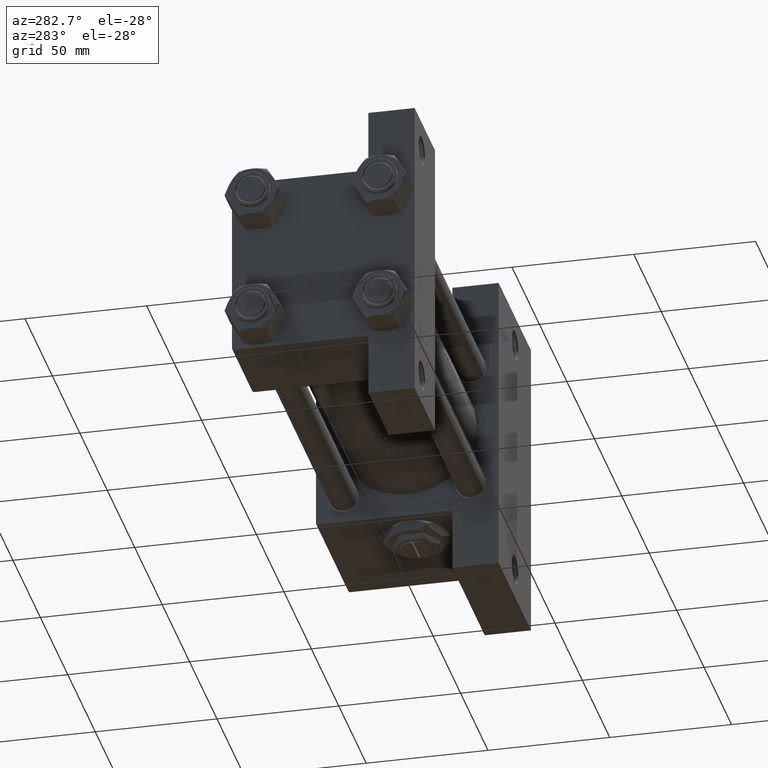
[diagram: clean part render]
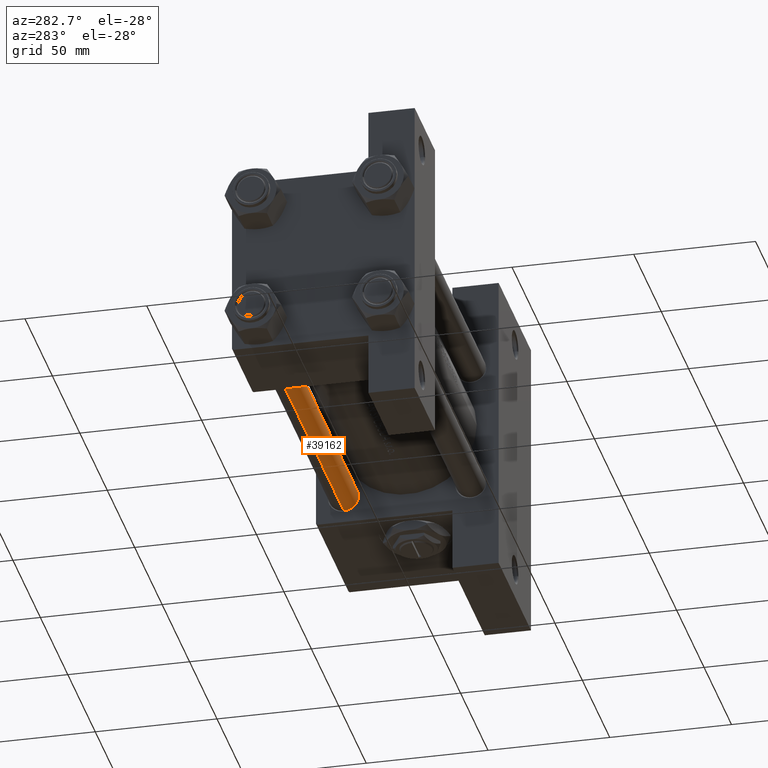
[diagram: same view with one face highlighted and labeled with its STEP entity id]
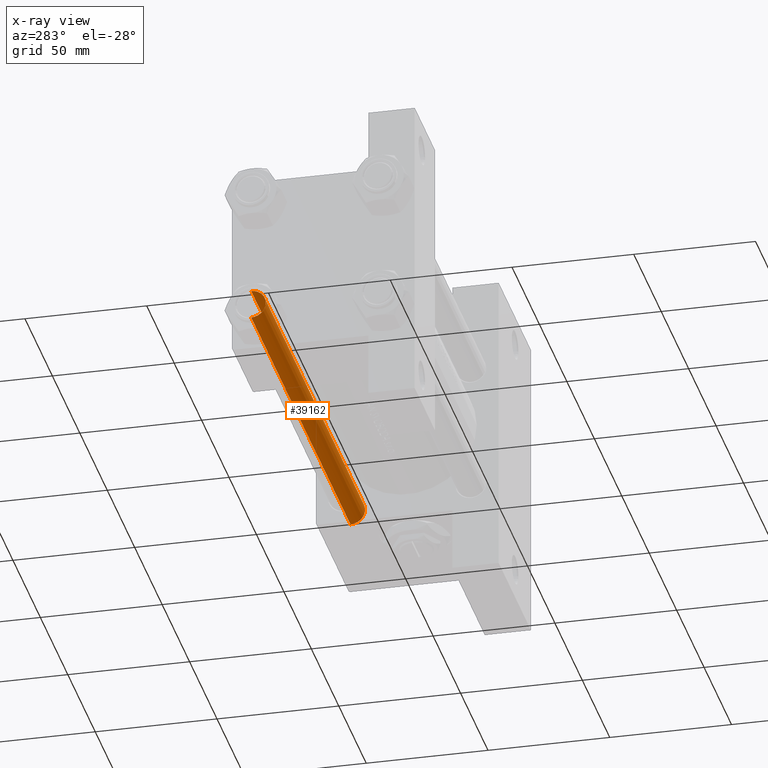
[diagram: x-ray of the same camera — body ghosted, the highlighted face saturated]
A machine part, auxiliary view. The second image highlights one B-rep face of the part: STEP entity #39162.
The next image is the same camera in x-ray: the body ghosted, the highlighted face saturated — about 0% of this face is hidden behind the body in this view.
In plain terms, the highlighted cylindrical surface (edge-blend (fillet) strip) has radius 6 mm, axis along (1, -0, -0).
Its self-contained STEP definition (entity closure, byte-faithful):
#453 = LINE ( 'NONE', #8876, #14073 ) ;
#2646 = CIRCLE ( 'NONE', #23282, 6.000000000000000888 ) ;
#3080 = CARTESIAN_POINT ( 'NONE',  ( 6.000000000000000888, 7.347880794884120722E-16, 181.5000000000000000 ) ) ;
#3381 = EDGE_CURVE ( 'NONE', #28460, #16814, #453, .T. ) ;
#3505 = VECTOR ( 'NONE', #26025, 1000.000000000000000 ) ;
#5474 = DIRECTION ( 'NONE',  ( -1.000000000000000000, 0.000000000000000000, 0.000000000000000000 ) ) ;
#6356 = CARTESIAN_POINT ( 'NONE',  ( -6.000000000000000888, 0.000000000000000000, 182.0000000000000000 ) ) ;
#6581 = ORIENTED_EDGE ( 'NONE', *, *, #3381, .F. ) ;
#8783 = CARTESIAN_POINT ( 'NONE',  ( -6.000000000000000888, 0.000000000000000000, 0.5000000000000281997 ) ) ;
#8876 = CARTESIAN_POINT ( 'NONE',  ( 6.000000000000000888, 7.347880794884120722E-16, 182.0000000000000000 ) ) ;
#12048 = CARTESIAN_POINT ( 'NONE',  ( -6.000000000000000888, 0.000000000000000000, 181.5000000000000000 ) ) ;
#13974 = VERTEX_POINT ( 'NONE', #8783 ) ;
#14073 = VECTOR ( 'NONE', #42276, 1000.000000000000000 ) ;
#16814 = VERTEX_POINT ( 'NONE', #38670 ) ;
#17011 = AXIS2_PLACEMENT_3D ( 'NONE', #45402, #37404, #33688 ) ;
#21734 = EDGE_CURVE ( 'NONE', #43427, #13974, #47727, .T. ) ;
#22023 = EDGE_CURVE ( 'NONE', #28460, #43427, #22576, .T. ) ;
#22576 = CIRCLE ( 'NONE', #17011, 6.000000000000000888 ) ;
#22762 = EDGE_CURVE ( 'NONE', #13974, #16814, #2646, .T. ) ;
#23282 = AXIS2_PLACEMENT_3D ( 'NONE', #45905, #30169, #34186 ) ;
#25392 = DIRECTION ( 'NONE',  ( -0.000000000000000000, -0.000000000000000000, -1.000000000000000000 ) ) ;
#26025 = DIRECTION ( 'NONE',  ( -0.000000000000000000, -0.000000000000000000, -1.000000000000000000 ) ) ;
#26900 = ORIENTED_EDGE ( 'NONE', *, *, #22762, .T. ) ;
#28120 = EDGE_LOOP ( 'NONE', ( #6581, #39266, #38112, #26900 ) ) ;
#28460 = VERTEX_POINT ( 'NONE', #3080 ) ;
#30169 = DIRECTION ( 'NONE',  ( -0.000000000000000000, -0.000000000000000000, 1.000000000000000000 ) ) ;
#32363 = FACE_OUTER_BOUND ( 'NONE', #28120, .T. ) ;
#33688 = DIRECTION ( 'NONE',  ( 1.000000000000000000, 0.000000000000000000, 0.000000000000000000 ) ) ;
#34186 = DIRECTION ( 'NONE',  ( 1.000000000000000000, 0.000000000000000000, 0.000000000000000000 ) ) ;
#36423 = AXIS2_PLACEMENT_3D ( 'NONE', #43851, #25392, #5474 ) ;
#37404 = DIRECTION ( 'NONE',  ( 0.000000000000000000, 0.000000000000000000, -1.000000000000000000 ) ) ;
#38112 = ORIENTED_EDGE ( 'NONE', *, *, #21734, .T. ) ;
#38670 = CARTESIAN_POINT ( 'NONE',  ( 6.000000000000000888, 7.347880794884120722E-16, 0.5000000000000281997 ) ) ;
#39162 = ADVANCED_FACE ( 'NONE', ( #32363 ), #47837, .T. ) ;
#39266 = ORIENTED_EDGE ( 'NONE', *, *, #22023, .T. ) ;
#42276 = DIRECTION ( 'NONE',  ( -0.000000000000000000, -0.000000000000000000, -1.000000000000000000 ) ) ;
#43427 = VERTEX_POINT ( 'NONE', #12048 ) ;
#43851 = CARTESIAN_POINT ( 'NONE',  ( 0.000000000000000000, 0.000000000000000000, 182.0000000000000000 ) ) ;
#45402 = CARTESIAN_POINT ( 'NONE',  ( 0.000000000000000000, 0.000000000000000000, 181.5000000000000000 ) ) ;
#45905 = CARTESIAN_POINT ( 'NONE',  ( 0.000000000000000000, 0.000000000000000000, 0.5000000000000281997 ) ) ;
#47727 = LINE ( 'NONE', #6356, #3505 ) ;
#47837 = CYLINDRICAL_SURFACE ( 'NONE', #36423, 6.000000000000000888 ) ;